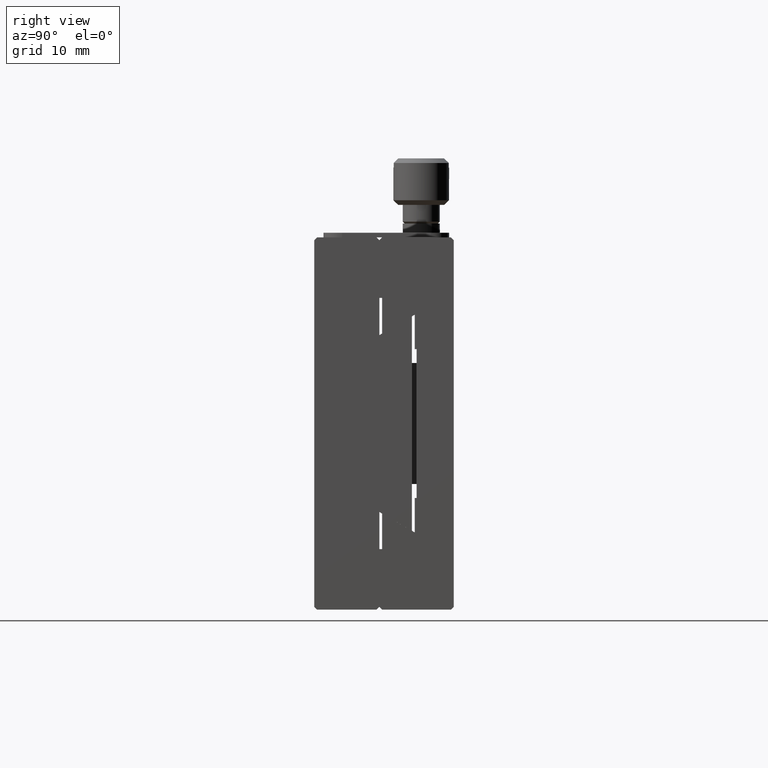
[diagram: clean part render]
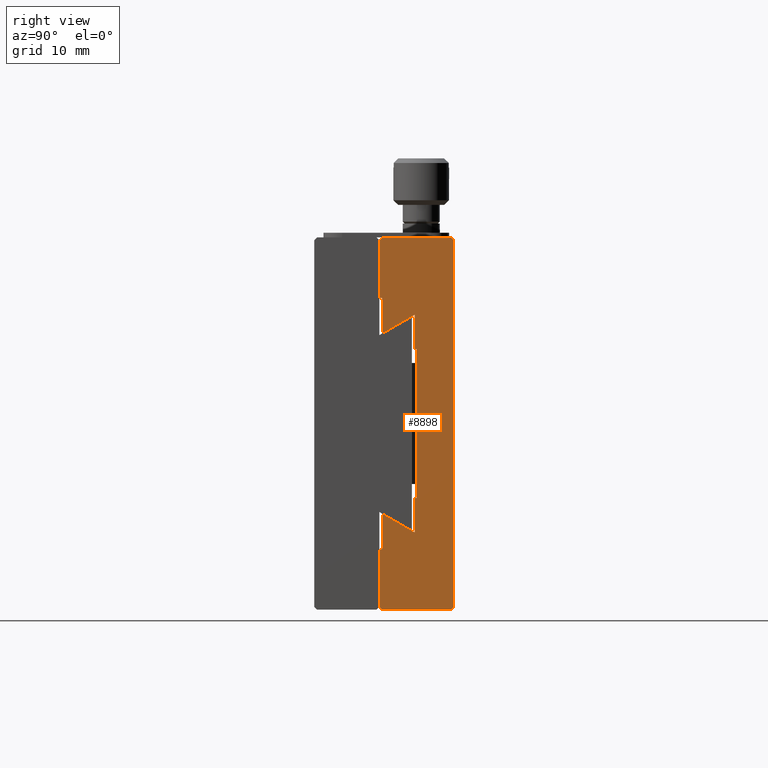
[diagram: same view with one face highlighted and labeled with its STEP entity id]
A machine part, right view. The second image highlights one B-rep face of the part: STEP entity #8898.
In plain terms, the highlighted planar face has unit normal (1, 0, 0).
Its self-contained STEP definition (entity closure, byte-faithful):
#21 = DIRECTION ( 'NONE',  ( -0.000000000000000000, 1.000000000000000000, 0.000000000000000000 ) ) ;
#141 = CARTESIAN_POINT ( 'NONE',  ( 40.00000000000000000, 15.00000000000000000, -0.3000000000000109801 ) ) ;
#171 = AXIS2_PLACEMENT_3D ( 'NONE', #9050, #1750, #8861 ) ;
#282 = VERTEX_POINT ( 'NONE', #6298 ) ;
#608 = EDGE_CURVE ( 'NONE', #8122, #6616, #10219, .T. ) ;
#683 = VECTOR ( 'NONE', #5639, 1000.000000000000000 ) ;
#758 = LINE ( 'NONE', #2160, #11697 ) ;
#880 = ORIENTED_EDGE ( 'NONE', *, *, #8481, .T. ) ;
#890 = VECTOR ( 'NONE', #5238, 1000.000000000000000 ) ;
#1061 = CARTESIAN_POINT ( 'NONE',  ( 40.00000000000000000, 14.69999999999998153, -40.00000000000000000 ) ) ;
#1062 = EDGE_CURVE ( 'NONE', #8415, #12051, #8582, .T. ) ;
#1109 = CARTESIAN_POINT ( 'NONE',  ( 40.00000000000000000, 15.00000000000000000, -40.00000000000000000 ) ) ;
#1111 = CARTESIAN_POINT ( 'NONE',  ( 40.00000000000000000, 6.999999999999999112, -6.500000000000000888 ) ) ;
#1115 = VERTEX_POINT ( 'NONE', #10507 ) ;
#1264 = CARTESIAN_POINT ( 'NONE',  ( 40.00000000000000000, 11.00000000000000000, -28.00000000000000000 ) ) ;
#1376 = VERTEX_POINT ( 'NONE', #9247 ) ;
#1401 = LINE ( 'NONE', #2151, #7904 ) ;
#1416 = ORIENTED_EDGE ( 'NONE', *, *, #2532, .T. ) ;
#1426 = EDGE_CURVE ( 'NONE', #12051, #7089, #4221, .T. ) ;
#1541 = ORIENTED_EDGE ( 'NONE', *, *, #10854, .T. ) ;
#1628 = ORIENTED_EDGE ( 'NONE', *, *, #8510, .T. ) ;
#1639 = VERTEX_POINT ( 'NONE', #12768 ) ;
#1710 = VERTEX_POINT ( 'NONE', #5017 ) ;
#1750 = DIRECTION ( 'NONE',  ( 1.000000000000000000, 0.000000000000000000, 0.000000000000000000 ) ) ;
#1946 = DIRECTION ( 'NONE',  ( -0.000000000000000000, 1.230518249841690057E-16, 1.000000000000000000 ) ) ;
#1979 = LINE ( 'NONE', #1109, #8166 ) ;
#1983 = ORIENTED_EDGE ( 'NONE', *, *, #12243, .T. ) ;
#2103 = VERTEX_POINT ( 'NONE', #12822 ) ;
#2151 = CARTESIAN_POINT ( 'NONE',  ( 40.00000000000000000, 7.300000000000008704, 9.429780353434609169E-16 ) ) ;
#2160 = CARTESIAN_POINT ( 'NONE',  ( 40.00000000000000000, 10.80000000000000959, 0.000000000000000000 ) ) ;
#2191 = VECTOR ( 'NONE', #7244, 1000.000000000000000 ) ;
#2216 = EDGE_CURVE ( 'NONE', #7089, #8122, #1979, .T. ) ;
#2309 = VECTOR ( 'NONE', #8053, 1000.000000000000000 ) ;
#2340 = DIRECTION ( 'NONE',  ( 0.000000000000000000, 0.000000000000000000, -1.000000000000000000 ) ) ;
#2516 = VERTEX_POINT ( 'NONE', #9250 ) ;
#2532 = EDGE_CURVE ( 'NONE', #3843, #1639, #3094, .T. ) ;
#2974 = CARTESIAN_POINT ( 'NONE',  ( 40.00000000000000000, 10.80000000000000959, -12.00000000000000000 ) ) ;
#3094 = LINE ( 'NONE', #1264, #890 ) ;
#3110 = CARTESIAN_POINT ( 'NONE',  ( 40.00000000000000000, 11.00000000000000000, -28.00000000000000000 ) ) ;
#3162 = EDGE_CURVE ( 'NONE', #1710, #6632, #9500, .T. ) ;
#3167 = DIRECTION ( 'NONE',  ( 0.000000000000000000, 0.8659960399471554604, 0.5000508562094906351 ) ) ;
#3230 = DIRECTION ( 'NONE',  ( 0.000000000000000000, 0.000000000000000000, -1.000000000000000000 ) ) ;
#3290 = CARTESIAN_POINT ( 'NONE',  ( 40.00000000000000000, 6.999999999999988454, -39.70000000000000284 ) ) ;
#3303 = LINE ( 'NONE', #7379, #11150 ) ;
#3353 = CARTESIAN_POINT ( 'NONE',  ( 40.00000000000000000, 7.300000000000008704, 0.000000000000000000 ) ) ;
#3374 = VECTOR ( 'NONE', #10282, 1000.000000000000114 ) ;
#3382 = ORIENTED_EDGE ( 'NONE', *, *, #10030, .T. ) ;
#3406 = EDGE_CURVE ( 'NONE', #3570, #11251, #8278, .T. ) ;
#3570 = VERTEX_POINT ( 'NONE', #12537 ) ;
#3800 = CARTESIAN_POINT ( 'NONE',  ( 40.00000000000000000, 10.80000000000000959, -31.69399999999999906 ) ) ;
#3835 = EDGE_CURVE ( 'NONE', #11406, #282, #6119, .T. ) ;
#3843 = VERTEX_POINT ( 'NONE', #3110 ) ;
#3975 = CARTESIAN_POINT ( 'NONE',  ( 40.00000000000000000, 6.999999999999999112, 0.000000000000000000 ) ) ;
#4013 = DIRECTION ( 'NONE',  ( -0.000000000000000000, -1.000000000000000000, -0.000000000000000000 ) ) ;
#4137 = VECTOR ( 'NONE', #13067, 1000.000000000000000 ) ;
#4221 = LINE ( 'NONE', #3290, #11597 ) ;
#4413 = CARTESIAN_POINT ( 'NONE',  ( 40.00000000000000000, 15.00000000000000000, 5.421010862427519705E-17 ) ) ;
#4487 = DIRECTION ( 'NONE',  ( -0.000000000000000000, 0.7071067811865510144, -0.7071067811865441310 ) ) ;
#4514 = VECTOR ( 'NONE', #12552, 1000.000000000000000 ) ;
#4769 = FACE_OUTER_BOUND ( 'NONE', #12589, .T. ) ;
#4856 = ORIENTED_EDGE ( 'NONE', *, *, #11847, .T. ) ;
#4872 = ORIENTED_EDGE ( 'NONE', *, *, #1426, .T. ) ;
#4947 = CARTESIAN_POINT ( 'NONE',  ( 40.00000000000000000, 7.300000000000008704, -33.50000000000000000 ) ) ;
#5017 = CARTESIAN_POINT ( 'NONE',  ( 40.00000000000000000, 14.69999999999998863, 1.087454779002960824E-16 ) ) ;
#5033 = CARTESIAN_POINT ( 'NONE',  ( 40.00000000000000000, 7.300000000000008704, 0.000000000000000000 ) ) ;
#5039 = ORIENTED_EDGE ( 'NONE', *, *, #3406, .T. ) ;
#5066 = EDGE_CURVE ( 'NONE', #2516, #1376, #12953, .T. ) ;
#5104 = VECTOR ( 'NONE', #5745, 1000.000000000000000 ) ;
#5190 = CARTESIAN_POINT ( 'NONE',  ( 40.00000000000000000, 6.999999999999999112, -0.3000000000000095923 ) ) ;
#5238 = DIRECTION ( 'NONE',  ( -0.000000000000000000, -1.000000000000000000, -0.000000000000000000 ) ) ;
#5258 = VERTEX_POINT ( 'NONE', #5190 ) ;
#5639 = DIRECTION ( 'NONE',  ( 0.000000000000000000, 0.000000000000000000, -1.000000000000000000 ) ) ;
#5738 = VECTOR ( 'NONE', #7407, 1000.000000000000000 ) ;
#5745 = DIRECTION ( 'NONE',  ( 0.000000000000000000, 0.000000000000000000, -1.000000000000000000 ) ) ;
#6119 = LINE ( 'NONE', #2974, #4137 ) ;
#6236 = DIRECTION ( 'NONE',  ( 0.000000000000000000, 0.000000000000000000, -1.000000000000000000 ) ) ;
#6298 = CARTESIAN_POINT ( 'NONE',  ( 40.00000000000000000, 11.00000000000000000, -12.00000000000000000 ) ) ;
#6578 = ORIENTED_EDGE ( 'NONE', *, *, #608, .T. ) ;
#6589 = VECTOR ( 'NONE', #2340, 1000.000000000000000 ) ;
#6597 = ORIENTED_EDGE ( 'NONE', *, *, #11837, .T. ) ;
#6616 = VERTEX_POINT ( 'NONE', #8399 ) ;
#6632 = VERTEX_POINT ( 'NONE', #12599 ) ;
#6715 = CARTESIAN_POINT ( 'NONE',  ( 40.00000000000000000, 7.300000000000004263, -40.00000000000000711 ) ) ;
#6747 = CARTESIAN_POINT ( 'NONE',  ( 40.00000000000000000, 11.00000000000000000, 0.000000000000000000 ) ) ;
#6850 = ORIENTED_EDGE ( 'NONE', *, *, #2216, .T. ) ;
#6975 = ORIENTED_EDGE ( 'NONE', *, *, #10719, .T. ) ;
#6986 = ORIENTED_EDGE ( 'NONE', *, *, #9750, .T. ) ;
#7089 = VERTEX_POINT ( 'NONE', #6715 ) ;
#7183 = CARTESIAN_POINT ( 'NONE',  ( 40.00000000000000000, 10.80000000000000959, -12.00000000000000000 ) ) ;
#7244 = DIRECTION ( 'NONE',  ( -0.000000000000000000, -0.7071067811865470176, 0.7071067811865480168 ) ) ;
#7379 = CARTESIAN_POINT ( 'NONE',  ( 40.00000000000000000, 7.300000000000008704, -10.32699999999999996 ) ) ;
#7407 = DIRECTION ( 'NONE',  ( 0.000000000000000000, 0.000000000000000000, -1.000000000000000000 ) ) ;
#7608 = LINE ( 'NONE', #12755, #5738 ) ;
#7904 = VECTOR ( 'NONE', #8375, 1000.000000000000000 ) ;
#8053 = DIRECTION ( 'NONE',  ( 0.000000000000000000, 0.000000000000000000, -1.000000000000000000 ) ) ;
#8122 = VERTEX_POINT ( 'NONE', #10264 ) ;
#8166 = VECTOR ( 'NONE', #21, 1000.000000000000000 ) ;
#8278 = LINE ( 'NONE', #1111, #12022 ) ;
#8375 = DIRECTION ( 'NONE',  ( -0.000000000000000000, -0.7071067811865470176, -0.7071067811865480168 ) ) ;
#8399 = CARTESIAN_POINT ( 'NONE',  ( 40.00000000000000000, 14.99999999999999112, -39.69999999999999574 ) ) ;
#8415 = VERTEX_POINT ( 'NONE', #10995 ) ;
#8481 = EDGE_CURVE ( 'NONE', #5258, #3570, #13123, .T. ) ;
#8510 = EDGE_CURVE ( 'NONE', #1639, #2516, #758, .T. ) ;
#8582 = LINE ( 'NONE', #8714, #683 ) ;
#8615 = VECTOR ( 'NONE', #1946, 1000.000000000000000 ) ;
#8714 = CARTESIAN_POINT ( 'NONE',  ( 40.00000000000000000, 6.999999999999999112, 0.000000000000000000 ) ) ;
#8785 = PLANE ( 'NONE',  #171 ) ;
#8802 = CARTESIAN_POINT ( 'NONE',  ( 40.00000000000000000, 7.300000000000008704, -6.500000000000000888 ) ) ;
#8861 = DIRECTION ( 'NONE',  ( 0.000000000000000000, 0.000000000000000000, -1.000000000000000000 ) ) ;
#8898 = ADVANCED_FACE ( 'NONE', ( #4769 ), #8785, .T. ) ;
#8907 = LINE ( 'NONE', #4947, #11728 ) ;
#9050 = CARTESIAN_POINT ( 'NONE',  ( 40.00000000000000000, 15.00000000000000000, 0.000000000000000000 ) ) ;
#9056 = EDGE_CURVE ( 'NONE', #1376, #12874, #12441, .T. ) ;
#9199 = VERTEX_POINT ( 'NONE', #10968 ) ;
#9247 = CARTESIAN_POINT ( 'NONE',  ( 40.00000000000000000, 7.300000000000005151, -29.67300000000000537 ) ) ;
#9250 = CARTESIAN_POINT ( 'NONE',  ( 40.00000000000000000, 10.80000000000000959, -31.69399999999999906 ) ) ;
#9319 = LINE ( 'NONE', #3353, #12794 ) ;
#9321 = ORIENTED_EDGE ( 'NONE', *, *, #9056, .T. ) ;
#9500 = LINE ( 'NONE', #4413, #4514 ) ;
#9677 = ORIENTED_EDGE ( 'NONE', *, *, #5066, .T. ) ;
#9715 = EDGE_CURVE ( 'NONE', #2103, #1710, #11250, .T. ) ;
#9745 = DIRECTION ( 'NONE',  ( 0.000000000000000000, -0.8659960399471572368, 0.5000508562094874154 ) ) ;
#9750 = EDGE_CURVE ( 'NONE', #1115, #9199, #3303, .T. ) ;
#10030 = EDGE_CURVE ( 'NONE', #6616, #2103, #10908, .T. ) ;
#10219 = LINE ( 'NONE', #1061, #3374 ) ;
#10264 = CARTESIAN_POINT ( 'NONE',  ( 40.00000000000000000, 14.69999999999998153, -40.00000000000000000 ) ) ;
#10282 = DIRECTION ( 'NONE',  ( 0.000000000000000000, 0.7071067811865680008, 0.7071067811865270336 ) ) ;
#10406 = ORIENTED_EDGE ( 'NONE', *, *, #9715, .T. ) ;
#10507 = CARTESIAN_POINT ( 'NONE',  ( 40.00000000000000000, 7.300000000000008704, -10.32699999999999996 ) ) ;
#10598 = CARTESIAN_POINT ( 'NONE',  ( 40.00000000000000000, 7.300000000000007816, -33.50000000000000000 ) ) ;
#10719 = EDGE_CURVE ( 'NONE', #9199, #11406, #7608, .T. ) ;
#10854 = EDGE_CURVE ( 'NONE', #282, #3843, #13020, .T. ) ;
#10908 = LINE ( 'NONE', #11851, #8615 ) ;
#10968 = CARTESIAN_POINT ( 'NONE',  ( 40.00000000000000000, 10.80000000000000959, -8.305999999999981398 ) ) ;
#10995 = CARTESIAN_POINT ( 'NONE',  ( 40.00000000000000000, 6.999999999999999112, -33.50000000000000000 ) ) ;
#11135 = DIRECTION ( 'NONE',  ( -0.000000000000000000, 1.000000000000000000, 0.000000000000000000 ) ) ;
#11150 = VECTOR ( 'NONE', #3167, 1000.000000000000114 ) ;
#11250 = LINE ( 'NONE', #141, #2191 ) ;
#11251 = VERTEX_POINT ( 'NONE', #8802 ) ;
#11406 = VERTEX_POINT ( 'NONE', #7183 ) ;
#11576 = VECTOR ( 'NONE', #9745, 1000.000000000000114 ) ;
#11597 = VECTOR ( 'NONE', #4487, 999.9999999999998863 ) ;
#11646 = ORIENTED_EDGE ( 'NONE', *, *, #1062, .T. ) ;
#11697 = VECTOR ( 'NONE', #3230, 1000.000000000000000 ) ;
#11728 = VECTOR ( 'NONE', #4013, 1000.000000000000000 ) ;
#11837 = EDGE_CURVE ( 'NONE', #11251, #1115, #9319, .T. ) ;
#11847 = EDGE_CURVE ( 'NONE', #6632, #5258, #1401, .T. ) ;
#11851 = CARTESIAN_POINT ( 'NONE',  ( 40.00000000000000000, 14.99999999999999467, -39.70000000000000284 ) ) ;
#11895 = CARTESIAN_POINT ( 'NONE',  ( 40.00000000000000000, 6.999999999999992006, -39.70000000000000995 ) ) ;
#12022 = VECTOR ( 'NONE', #11135, 1000.000000000000000 ) ;
#12051 = VERTEX_POINT ( 'NONE', #11895 ) ;
#12243 = EDGE_CURVE ( 'NONE', #12874, #8415, #8907, .T. ) ;
#12250 = ORIENTED_EDGE ( 'NONE', *, *, #3835, .T. ) ;
#12441 = LINE ( 'NONE', #5033, #6589 ) ;
#12537 = CARTESIAN_POINT ( 'NONE',  ( 40.00000000000000000, 6.999999999999999112, -6.500000000000000888 ) ) ;
#12552 = DIRECTION ( 'NONE',  ( 0.000000000000000000, -1.000000000000000000, -0.000000000000000000 ) ) ;
#12589 = EDGE_LOOP ( 'NONE', ( #3382, #10406, #13177, #4856, #880, #5039, #6597, #6986, #6975, #12250, #1541, #1416, #1628, #9677, #9321, #1983, #11646, #4872, #6850, #6578 ) ) ;
#12599 = CARTESIAN_POINT ( 'NONE',  ( 40.00000000000000000, 7.300000000000007816, 7.221239404593376994E-16 ) ) ;
#12755 = CARTESIAN_POINT ( 'NONE',  ( 40.00000000000000000, 10.80000000000000959, 0.000000000000000000 ) ) ;
#12768 = CARTESIAN_POINT ( 'NONE',  ( 40.00000000000000000, 10.80000000000000959, -28.00000000000000000 ) ) ;
#12794 = VECTOR ( 'NONE', #6236, 1000.000000000000000 ) ;
#12822 = CARTESIAN_POINT ( 'NONE',  ( 40.00000000000000000, 14.99999999999999645, -0.3000000000000066502 ) ) ;
#12874 = VERTEX_POINT ( 'NONE', #10598 ) ;
#12953 = LINE ( 'NONE', #3800, #11576 ) ;
#13020 = LINE ( 'NONE', #6747, #5104 ) ;
#13067 = DIRECTION ( 'NONE',  ( -0.000000000000000000, 1.000000000000000000, 0.000000000000000000 ) ) ;
#13123 = LINE ( 'NONE', #3975, #2309 ) ;
#13177 = ORIENTED_EDGE ( 'NONE', *, *, #3162, .T. ) ;